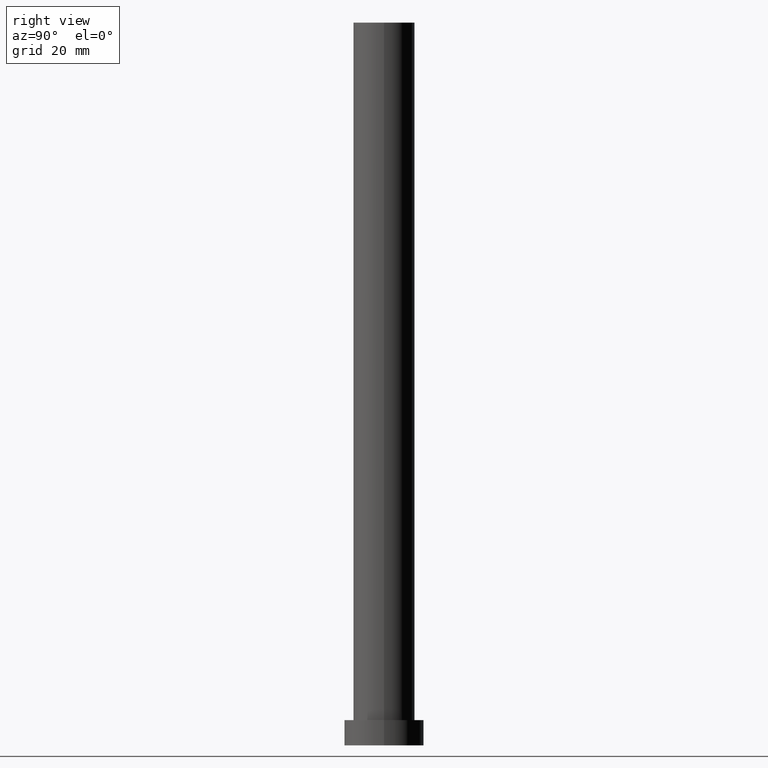
[diagram: clean part render]
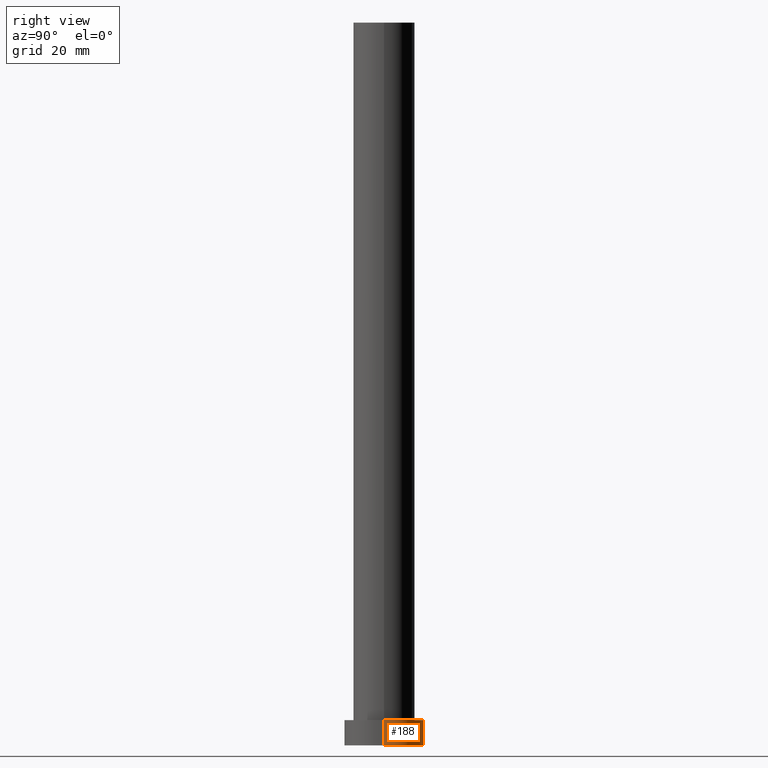
[diagram: same view with one face highlighted and labeled with its STEP entity id]
A machine part, right view. The second image highlights one B-rep face of the part: STEP entity #188.
In plain terms, the highlighted cylindrical surface (partial cylindrical patch) has radius 11 mm, axis along (-0, -0, -1).
Its self-contained STEP definition (entity closure, byte-faithful):
#1 = ORIENTED_EDGE ( 'NONE', *, *, #53, .T. ) ;
#12 = ORIENTED_EDGE ( 'NONE', *, *, #255, .F. ) ;
#19 = AXIS2_PLACEMENT_3D ( 'NONE', #150, #106, #191 ) ;
#24 = VERTEX_POINT ( 'NONE', #91 ) ;
#27 = CIRCLE ( 'NONE', #19, 11.00000000000000000 ) ;
#34 = DIRECTION ( 'NONE',  ( -1.000000000000000000, 0.000000000000000000, 0.000000000000000000 ) ) ;
#35 = CIRCLE ( 'NONE', #148, 11.00000000000000000 ) ;
#53 = EDGE_CURVE ( 'NONE', #96, #73, #129, .T. ) ;
#57 = CARTESIAN_POINT ( 'NONE',  ( 0.000000000000000000, 0.000000000000000000, 7.000000000000000000 ) ) ;
#60 = CARTESIAN_POINT ( 'NONE',  ( 11.00000000000000000, 1.347111479062088405E-15, 7.000000000000000000 ) ) ;
#67 = EDGE_CURVE ( 'NONE', #73, #160, #27, .T. ) ;
#70 = LINE ( 'NONE', #142, #147 ) ;
#71 = EDGE_LOOP ( 'NONE', ( #113, #1, #126, #12 ) ) ;
#73 = VERTEX_POINT ( 'NONE', #93 ) ;
#91 = CARTESIAN_POINT ( 'NONE',  ( -11.00000000000000000, 0.000000000000000000, 7.000000000000000000 ) ) ;
#93 = CARTESIAN_POINT ( 'NONE',  ( 11.00000000000000000, 1.347111479062088405E-15, 0.000000000000000000 ) ) ;
#96 = VERTEX_POINT ( 'NONE', #60 ) ;
#101 = CARTESIAN_POINT ( 'NONE',  ( 0.000000000000000000, 0.000000000000000000, 7.000000000000000000 ) ) ;
#106 = DIRECTION ( 'NONE',  ( 0.000000000000000000, 0.000000000000000000, 1.000000000000000000 ) ) ;
#113 = ORIENTED_EDGE ( 'NONE', *, *, #200, .F. ) ;
#123 = DIRECTION ( 'NONE',  ( 0.000000000000000000, 0.000000000000000000, 1.000000000000000000 ) ) ;
#126 = ORIENTED_EDGE ( 'NONE', *, *, #67, .T. ) ;
#128 = DIRECTION ( 'NONE',  ( -0.000000000000000000, -0.000000000000000000, -1.000000000000000000 ) ) ;
#129 = LINE ( 'NONE', #169, #131 ) ;
#131 = VECTOR ( 'NONE', #128, 1000.000000000000000 ) ;
#142 = CARTESIAN_POINT ( 'NONE',  ( -11.00000000000000000, 0.000000000000000000, 7.000000000000000000 ) ) ;
#145 = DIRECTION ( 'NONE',  ( -0.000000000000000000, -0.000000000000000000, -1.000000000000000000 ) ) ;
#147 = VECTOR ( 'NONE', #245, 1000.000000000000000 ) ;
#148 = AXIS2_PLACEMENT_3D ( 'NONE', #57, #123, #183 ) ;
#150 = CARTESIAN_POINT ( 'NONE',  ( 0.000000000000000000, 0.000000000000000000, 0.000000000000000000 ) ) ;
#160 = VERTEX_POINT ( 'NONE', #215 ) ;
#169 = CARTESIAN_POINT ( 'NONE',  ( 11.00000000000000000, 1.347111479062088405E-15, 7.000000000000000000 ) ) ;
#183 = DIRECTION ( 'NONE',  ( 1.000000000000000000, 0.000000000000000000, 0.000000000000000000 ) ) ;
#188 = ADVANCED_FACE ( 'NONE', ( #208 ), #227, .T. ) ;
#191 = DIRECTION ( 'NONE',  ( 1.000000000000000000, 0.000000000000000000, 0.000000000000000000 ) ) ;
#200 = EDGE_CURVE ( 'NONE', #96, #24, #35, .T. ) ;
#208 = FACE_OUTER_BOUND ( 'NONE', #71, .T. ) ;
#215 = CARTESIAN_POINT ( 'NONE',  ( -11.00000000000000000, 0.000000000000000000, 0.000000000000000000 ) ) ;
#225 = AXIS2_PLACEMENT_3D ( 'NONE', #101, #145, #34 ) ;
#227 = CYLINDRICAL_SURFACE ( 'NONE', #225, 11.00000000000000000 ) ;
#245 = DIRECTION ( 'NONE',  ( -0.000000000000000000, -0.000000000000000000, -1.000000000000000000 ) ) ;
#255 = EDGE_CURVE ( 'NONE', #24, #160, #70, .T. ) ;